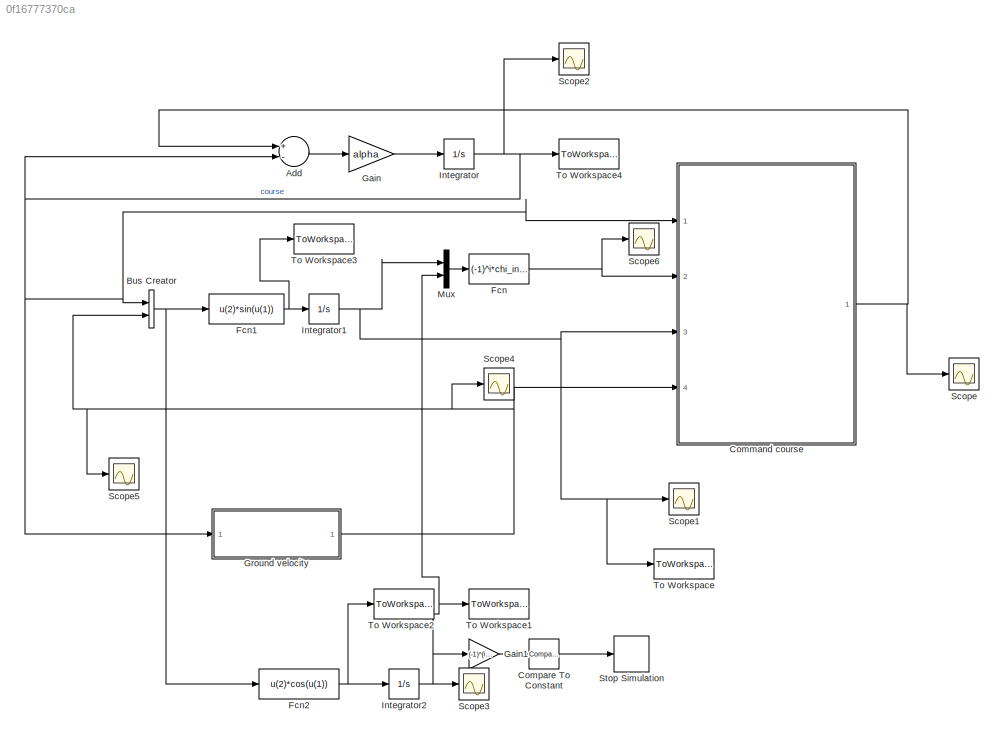
MODEL slx_0f16777370ca
KIND model
CONFIG AbsTol = auto
CONFIG FixedStep = auto
CONFIG MaxStep = auto
CONFIG MinStep = auto
CONFIG RelTol = 1e-3
CONFIG SampleTimeConstraint = Unconstrained
CONFIG Solver = VariableStepAuto
CONFIG SolverMode = Auto
CONFIG SolverName = VariableStepAuto
CONFIG StartTime = 0.0
CONFIG StopTime = 2000
BLOCK [Sum] Add
  InputSameDT = off
  Inputs = +-
  OutDataTypeStr = Inherit: Inherit via internal rule
  Ports = [2, 1]
  SaturateOnIntegerOverflow = off
BLOCK [BusCreator] Bus Creator
  DisplayOption = bar
  InheritFromInputs = on
  Inputs = 2
  Ports = [2, 1]
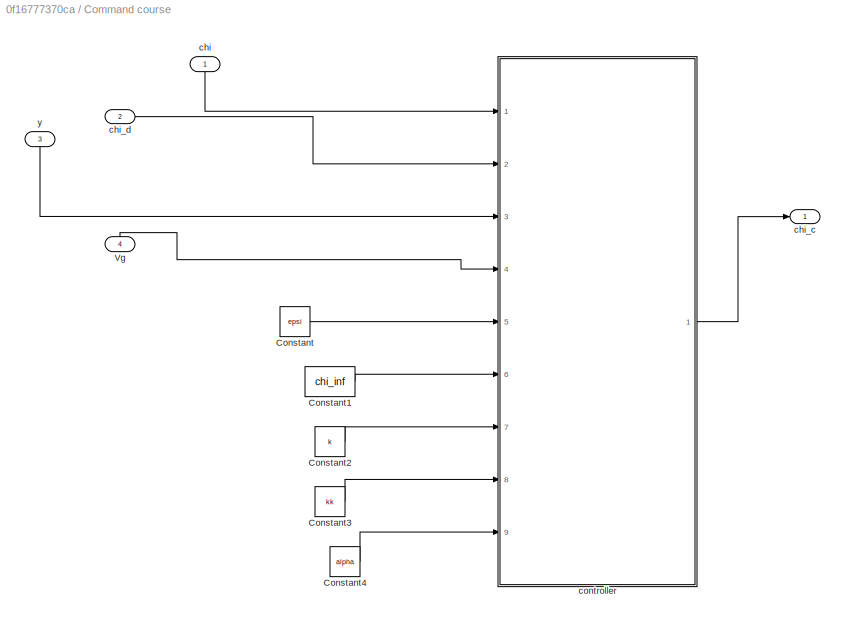
BLOCK [SubSystem] Command course
  Ports = [4, 1]
  RequestExecContextInheritance = off
  Variant = off
BLOCK [Constant] Command course/Constant
  Value = epsi
BLOCK [Constant] Command course/Constant1
  Value = chi_inf
BLOCK [Constant] Command course/Constant2
  Value = k
BLOCK [Constant] Command course/Constant3
  Value = kk
BLOCK [Constant] Command course/Constant4
  Value = alpha
BLOCK [Inport] Command course/Vg
  IconDisplay = Port number
  Port = 4
BLOCK [Inport] Command course/chi
  IconDisplay = Port number
BLOCK [Outport] Command course/chi_c
  IconDisplay = Port number
BLOCK [Inport] Command course/chi_d
  IconDisplay = Port number
  Port = 2
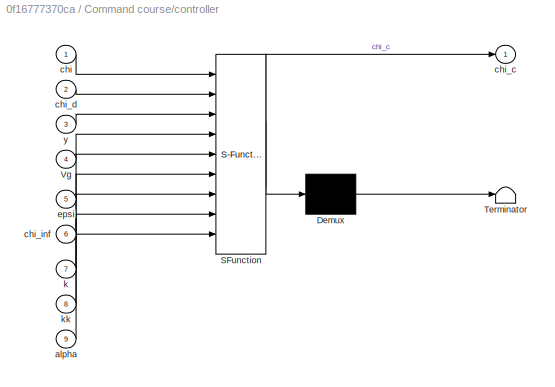
BLOCK [SubSystem] Command course/controller
  ErrorFcn = Stateflow.Translate.translate
  PermitHierarchicalResolution = ExplicitOnly
  Ports = [9, 1]
  RequestExecContextInheritance = off
  SFBlockType = MATLAB Function
  TreatAsAtomicUnit = on
  Variant = off
BLOCK [Demux] Command course/controller/ Demux 
  Outputs = 1
  Ports = [1, 1]
BLOCK [S-Function] Command course/controller/ SFunction 
  EnableBusSupport = on
  FunctionName = sf_sfun
  PortCounts = [9 2]
  Ports = [9, 2]
  SFunctionDeploymentMode = off
  Tag = Stateflow S-Function StraightLine 2
BLOCK [Terminator] Command course/controller/ Terminator 
BLOCK [Inport] Command course/controller/Vg
  IconDisplay = Port number
  Port = 4
BLOCK [Inport] Command course/controller/alpha
  IconDisplay = Port number
  Port = 9
BLOCK [Inport] Command course/controller/chi
  IconDisplay = Port number
BLOCK [Outport] Command course/controller/chi_c
  IconDisplay = Port number
BLOCK [Inport] Command course/controller/chi_d
  IconDisplay = Port number
  Port = 2
BLOCK [Inport] Command course/controller/chi_inf
  IconDisplay = Port number
  Port = 6
BLOCK [Inport] Command course/controller/epsi
  IconDisplay = Port number
  Port = 5
BLOCK [Inport] Command course/controller/k
  IconDisplay = Port number
  Port = 7
BLOCK [Inport] Command course/controller/kk
  IconDisplay = Port number
  Port = 8
BLOCK [Inport] Command course/controller/y
  IconDisplay = Port number
  Port = 3
BLOCK [Inport] Command course/y
  IconDisplay = Port number
  Port = 3
BLOCK [Reference] Compare To Constant  REF=simulink/Logic and Bit
Operations/Compare
To Constant
  Ports = [1, 1]
  SourceBlock = simulink/Logic and Bit\nOperations/Compare\nTo Constant
  SourceType = Compare To Constant
BLOCK [Fcn] Fcn
  Expr = (-1)^i*chi_inf*2/pi*atan(k*(u(1)-aa*u(2)-bb))+ang
BLOCK [Fcn] Fcn1
  Expr = u(2)*sin(u(1))
BLOCK [Fcn] Fcn2
  Expr = u(2)*cos(u(1))
BLOCK [Gain] Gain
  Gain = alpha
  OutDataTypeStr = Inherit: Inherit via internal rule
  ParamDataTypeStr = Inherit: Inherit via internal rule
  SaturateOnIntegerOverflow = off
BLOCK [Gain] Gain1
  Gain = (-1)^(i+1)
  OutDataTypeStr = Inherit: Inherit via internal rule
  ParamDataTypeStr = Inherit: Inherit via internal rule
  SaturateOnIntegerOverflow = off
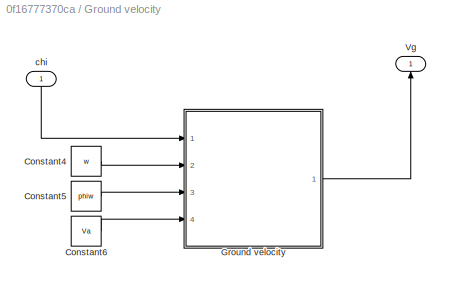
BLOCK [SubSystem] Ground velocity
  Ports = [1, 1]
  RequestExecContextInheritance = off
  Variant = off
BLOCK [Constant] Ground velocity/Constant4
  Value = w
BLOCK [Constant] Ground velocity/Constant5
  Value = phiw
BLOCK [Constant] Ground velocity/Constant6
  Value = Va
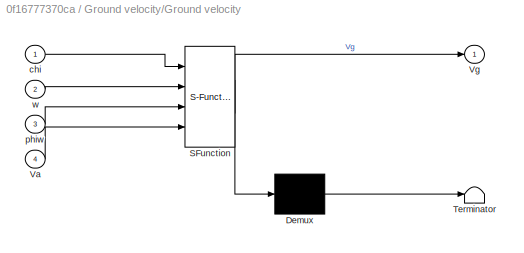
BLOCK [SubSystem] Ground velocity/Ground velocity
  ErrorFcn = Stateflow.Translate.translate
  PermitHierarchicalResolution = ExplicitOnly
  Ports = [4, 1]
  RequestExecContextInheritance = off
  SFBlockType = MATLAB Function
  TreatAsAtomicUnit = on
  Variant = off
BLOCK [Demux] Ground velocity/Ground velocity/ Demux 
  Outputs = 1
  Ports = [1, 1]
BLOCK [S-Function] Ground velocity/Ground velocity/ SFunction 
  EnableBusSupport = on
  FunctionName = sf_sfun
  PortCounts = [4 2]
  Ports = [4, 2]
  SFunctionDeploymentMode = off
  Tag = Stateflow S-Function StraightLine 1
BLOCK [Terminator] Ground velocity/Ground velocity/ Terminator 
BLOCK [Inport] Ground velocity/Ground velocity/Va
  IconDisplay = Port number
  Port = 4
BLOCK [Outport] Ground velocity/Ground velocity/Vg
  IconDisplay = Port number
BLOCK [Inport] Ground velocity/Ground velocity/chi
  IconDisplay = Port number
BLOCK [Inport] Ground velocity/Ground velocity/phiw
  IconDisplay = Port number
  Port = 3
BLOCK [Inport] Ground velocity/Ground velocity/w
  IconDisplay = Port number
  Port = 2
BLOCK [Outport] Ground velocity/Vg
  IconDisplay = Port number
BLOCK [Inport] Ground velocity/chi
  IconDisplay = Port number
BLOCK [Integrator] Integrator
  InitialCondition = course_int
  Ports = [1, 1]
BLOCK [Integrator] Integrator1
  InitialCondition = y_int
  Ports = [1, 1]
BLOCK [Integrator] Integrator2
  InitialCondition = x_int
  Ports = [1, 1]
BLOCK [Mux] Mux
  DisplayOption = bar
  Inputs = 2
  Ports = [2, 1]
BLOCK [Scope] Scope
  Ports = [1]
  ScopeSpecificationString = Simulink.scopes.TimeScopeBlockCfg('CurrentConfiguration', extmgr.ConfigurationSet(extmgr.Configuration('Core','General UI',true),extmgr.Configuration('Core','Source UI',true),extmgr.Configuration('Sources','WiredSimulink',true),extmgr.Configuration('Visuals','Time Domain',true,'SerializedDisplays',{struct('MinYLimReal','0.69128','MaxYLimReal','2.66277','YLabelReal','','MinYLimMag','0.69128','MaxYL...<+1382ch>
BLOCK [Scope] Scope1
  Ports = [1]
  ScopeSpecificationString = Simulink.scopes.TimeScopeBlockCfg('CurrentConfiguration', extmgr.ConfigurationSet(extmgr.Configuration('Core','General UI',true),extmgr.Configuration('Core','Source UI',true),extmgr.Configuration('Sources','WiredSimulink',true,'DataLoggingVariableName','ScopeData1'),extmgr.Configuration('Visuals','Time Domain',true,'SerializedDisplays',{struct('MinYLimReal','10.25702','MaxYLimReal','30.25702','YLa...<+1457ch>
BLOCK [Scope] Scope2
  Ports = [1]
  ScopeSpecificationString = Simulink.scopes.TimeScopeBlockCfg('CurrentConfiguration', extmgr.ConfigurationSet(extmgr.Configuration('Core','General UI',true),extmgr.Configuration('Core','Source UI',true),extmgr.Configuration('Sources','WiredSimulink',true,'DataLoggingVariableName','ScopeData2'),extmgr.Configuration('Visuals','Time Domain',true,'SerializedDisplays',{struct('MinYLimReal','3.0423','MaxYLimReal','4.03777','YLabel...<+1436ch>
BLOCK [Scope] Scope3
  Ports = [1]
  ScopeSpecificationString = Simulink.scopes.TimeScopeBlockCfg('CurrentConfiguration', extmgr.ConfigurationSet(extmgr.Configuration('Core','General UI',true),extmgr.Configuration('Core','Source UI',true),extmgr.Configuration('Sources','WiredSimulink',true,'DataLoggingVariableName','ScopeData3'),extmgr.Configuration('Visuals','Time Domain',true,'SerializedDisplays',{struct('MinYLimReal','-945.33421','MaxYLimReal','140.26448','...<+1436ch>
BLOCK [Scope] Scope4
  Ports = [1]
  ScopeSpecificationString = Simulink.scopes.TimeScopeBlockCfg('CurrentConfiguration', extmgr.ConfigurationSet(extmgr.Configuration('Core','General UI',true),extmgr.Configuration('Core','Source UI',true),extmgr.Configuration('Sources','WiredSimulink',true,'DataLoggingVariableName','ScopeData1'),extmgr.Configuration('Visuals','Time Domain',true,'SerializedDisplays',{struct('MinYLimReal','12.21636','MaxYLimReal','14.08468','YLa...<+1457ch>
BLOCK [Scope] Scope5
  Ports = [1]
  ScopeSpecificationString = C++SS(StrPVP('SaveName','ScopeData1'),StrPVP('LimitDataPoints','on'),StrPVP('DataFormat','Array'),StrPVP('Decimation','1'),StrPVP('BlockParamSampleInput','off'))
BLOCK [Scope] Scope6
  Ports = [1]
  ScopeSpecificationString = Simulink.scopes.TimeScopeBlockCfg('CurrentConfiguration', extmgr.ConfigurationSet(extmgr.Configuration('Core','General UI',true),extmgr.Configuration('Core','Source UI',true),extmgr.Configuration('Sources','WiredSimulink',true,'DataLoggingVariableName','ScopeData1'),extmgr.Configuration('Visuals','Time Domain',true,'SerializedDisplays',{struct('MinYLimReal','1.3776','MaxYLimReal','3.33759','YLabel...<+1356ch>
BLOCK [Stop] Stop Simulation
BLOCK [ToWorkspace] To Workspace
  FixptAsFi = on
  MaxDataPoints = inf
  Ports = [1]
  SampleTime = -1
  Save2DSignal = 3-D array (concatenate along third dimension)
  SaveFormat = Timeseries
  VariableName = y
BLOCK [ToWorkspace] To Workspace1
  FixptAsFi = on
  MaxDataPoints = inf
  Ports = [1]
  SampleTime = -1
  Save2DSignal = 3-D array (concatenate along third dimension)
  SaveFormat = Timeseries
  VariableName = x
BLOCK [ToWorkspace] To Workspace2
  FixptAsFi = on
  MaxDataPoints = inf
  Ports = [1]
  SampleTime = -1
  Save2DSignal = 3-D array (concatenate along third dimension)
  SaveFormat = Timeseries
  VariableName = vx
BLOCK [ToWorkspace] To Workspace3
  FixptAsFi = on
  MaxDataPoints = inf
  Ports = [1]
  SampleTime = -1
  Save2DSignal = 3-D array (concatenate along third dimension)
  SaveFormat = Timeseries
  VariableName = vy
BLOCK [ToWorkspace] To Workspace4
  FixptAsFi = on
  MaxDataPoints = inf
  Ports = [1]
  SampleTime = -1
  Save2DSignal = 3-D array (concatenate along third dimension)
  SaveFormat = Timeseries
  VariableName = course
LINE Add:1 -> Gain:1
NET Bus Creator:1 -> Fcn1:1, Fcn2:1
LINE Command course/Constant1:1 -> Command course/controller:6
LINE Command course/Constant2:1 -> Command course/controller:7
LINE Command course/Constant3:1 -> Command course/controller:8
LINE Command course/Constant4:1 -> Command course/controller:9
LINE Command course/Constant:1 -> Command course/controller:5
LINE Command course/Vg:1 -> Command course/controller:4
LINE Command course/chi:1 -> Command course/controller:1
LINE Command course/chi_d:1 -> Command course/controller:2
LINE Command course/controller:1 -> Command course/chi_c:1
LINE Command course/y:1 -> Command course/controller:3
NET Command course:1 -> Add:1, Scope:1
LINE Compare To Constant:1 -> Stop Simulation:1
NET Fcn1:1 -> Integrator1:1, To Workspace3:1
NET Fcn2:1 -> Integrator2:1, To Workspace2:1
NET Fcn:1 -> Command course:2, Scope6:1
LINE Gain1:1 -> Compare To Constant:1
LINE Gain:1 -> Integrator:1
LINE Ground velocity/Constant4:1 -> Ground velocity/Ground velocity:2
LINE Ground velocity/Constant5:1 -> Ground velocity/Ground velocity:3
LINE Ground velocity/Constant6:1 -> Ground velocity/Ground velocity:4
LINE Ground velocity/Ground velocity:1 -> Ground velocity/Vg:1
LINE Ground velocity/chi:1 -> Ground velocity/Ground velocity:1
NET Ground velocity:1 -> Bus Creator:2, Command course:4, Scope4:1, Scope5:1
NET Integrator1:1 -> Command course:3, Mux:1, Scope1:1, To Workspace:1
NET Integrator2:1 -> Gain1:1, Mux:2, Scope3:1, To Workspace1:1
NET Integrator:1 -> Add:2, Bus Creator:1, Command course:1, Ground velocity:1, Scope2:1, To Workspace4:1
LINE Mux:1 -> Fcn:1
note: NET lines group one-source signal fan-out (src -> all destinations, sorted); 1:1 wires keep LINE
CHART Ground velocity/Ground velocity states=1 transitions=1
  STATE_LABEL 'eML_blk_kernel()'
  STATE_LABEL 'SCRIPT:\nfunction Vg = GroundVelocity(chi,w,phiw,Va)\n%generate the ground velocity based on course angle\nVg=w*cos(chi-phiw)+sqrt(Va^2-w^2*(sin(chi-phiw))^2);\nend'
CHART Command course/controller states=1 transitions=1
  STATE_LABEL 'eML_blk_kernel()'
  STATE_LABEL 'SCRIPT:\nfunction chi_c = CommandCourse(chi,chi_d,y,Vg,epsi,chi_inf,k,kk,alpha)\n%generate command course angle chi_c\nsat=(chi-chi_d)/epsi;\nif abs(sat)<=1\n    rho=sat;\nelse\n    rho=sign(sat);\nend\nchi_c=chi-chi_inf*2/pi/alpha*k/(1+(k*y)^2)*Vg*sin(chi)-kk/alpha*rho;\n\n\nend'
